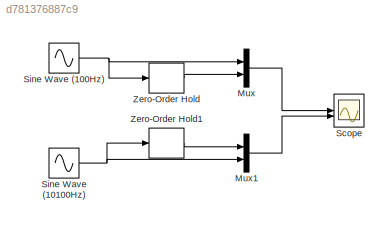
MODEL mdl_d781376887c9
KIND model
CONFIG AbsTol = auto
CONFIG EnableMultiTasking = off
CONFIG FixedStep = auto
CONFIG MaxStep = auto
CONFIG MinStep = auto
CONFIG RelTol = 1e-3
CONFIG SampleTimeConstraint = Unconstrained
CONFIG SolverName = VariableStepAuto
CONFIG StartTime = 0.0
CONFIG StopTime = 0.1
BLOCK [Mux] Mux
  DisplayOption = bar
  Inputs = 2
BLOCK [Mux] Mux1
  DisplayOption = bar
  Inputs = 2
BLOCK [Scope] Scope
  Floating = off
  NumInputPorts = 2
  ScopeSpecificationString = Simulink.scopes.TimeScopeBlockCfg('CurrentConfiguration', extmgr.ConfigurationSet(extmgr.Configuration('Core','General UI',true),extmgr.Configuration('Core','Source UI',true),extmgr.Configuration('Sources','WiredSimulink',true),extmgr.Configuration('Visuals','Time Domain',true,'SerializedDisplays',{struct('MinYLimReal','-1.25','MaxYLimReal','1.25','YLabelReal','','MinYLimMag','0.00000','MaxYLimMag...<+2154ch>
BLOCK [Sin] Sine Wave (100Hz)
  Frequency = 100
  SampleTime = 0
BLOCK [Sin] Sine Wave (10100Hz)
  Frequency = 9900
  SampleTime = 0
BLOCK [ZeroOrderHold] Zero-Order Hold
  SampleTime = 0.0001
BLOCK [ZeroOrderHold] Zero-Order Hold1
  SampleTime = 0.0001
LINE Mux1:1 -> Scope:2
LINE Mux:1 -> Scope:1
NET Sine Wave (100Hz):1 -> Mux:1, Zero-Order Hold:1
NET Sine Wave (10100Hz):1 -> Mux1:2, Zero-Order Hold1:1
LINE Zero-Order Hold1:1 -> Mux1:1
LINE Zero-Order Hold:1 -> Mux:2
note: NET lines group one-source signal fan-out (src -> all destinations, sorted); 1:1 wires keep LINE
